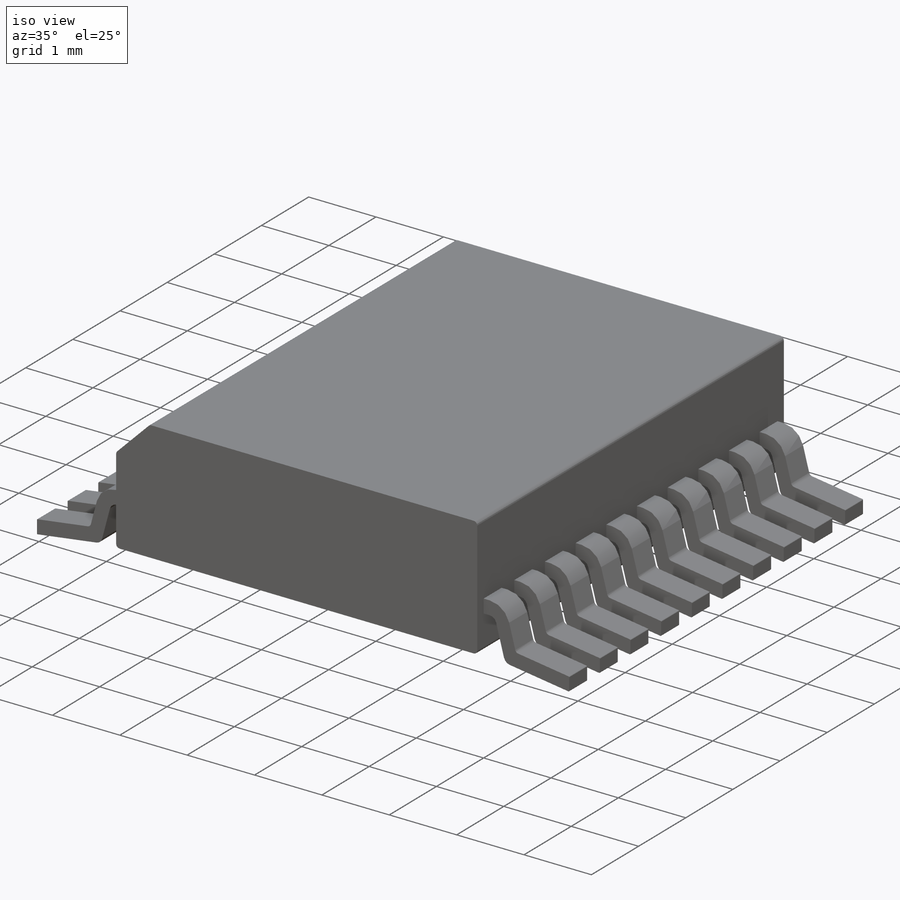
[diagram: iso view]
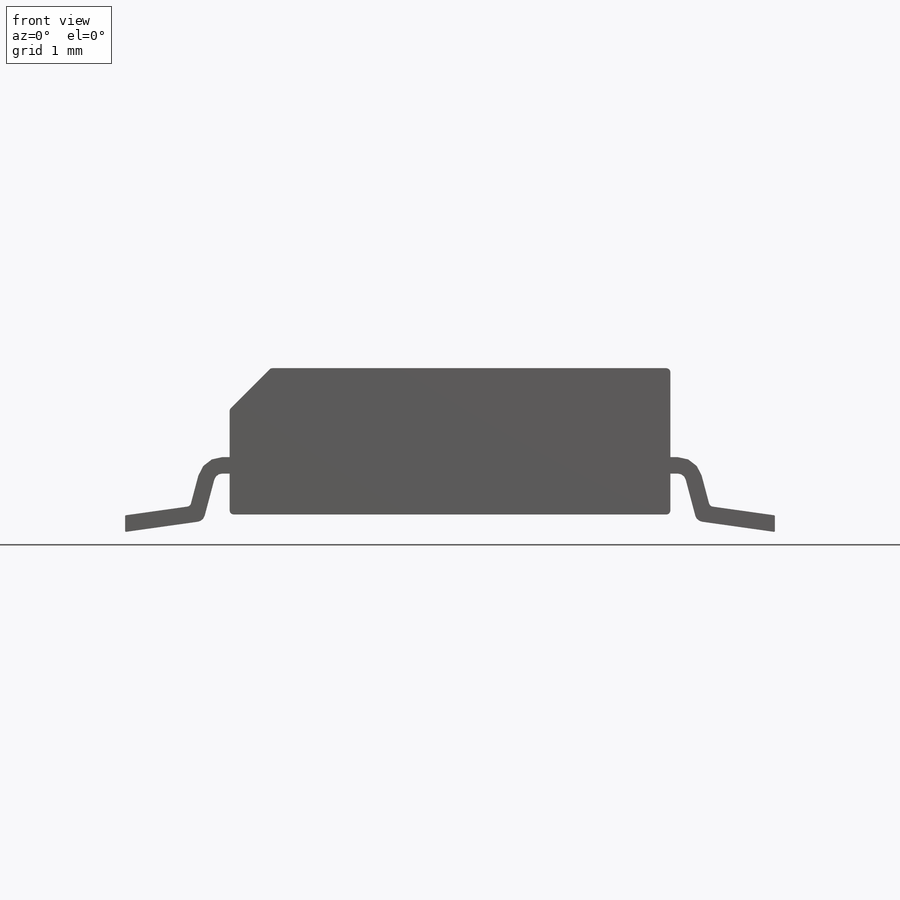
[diagram: front view]
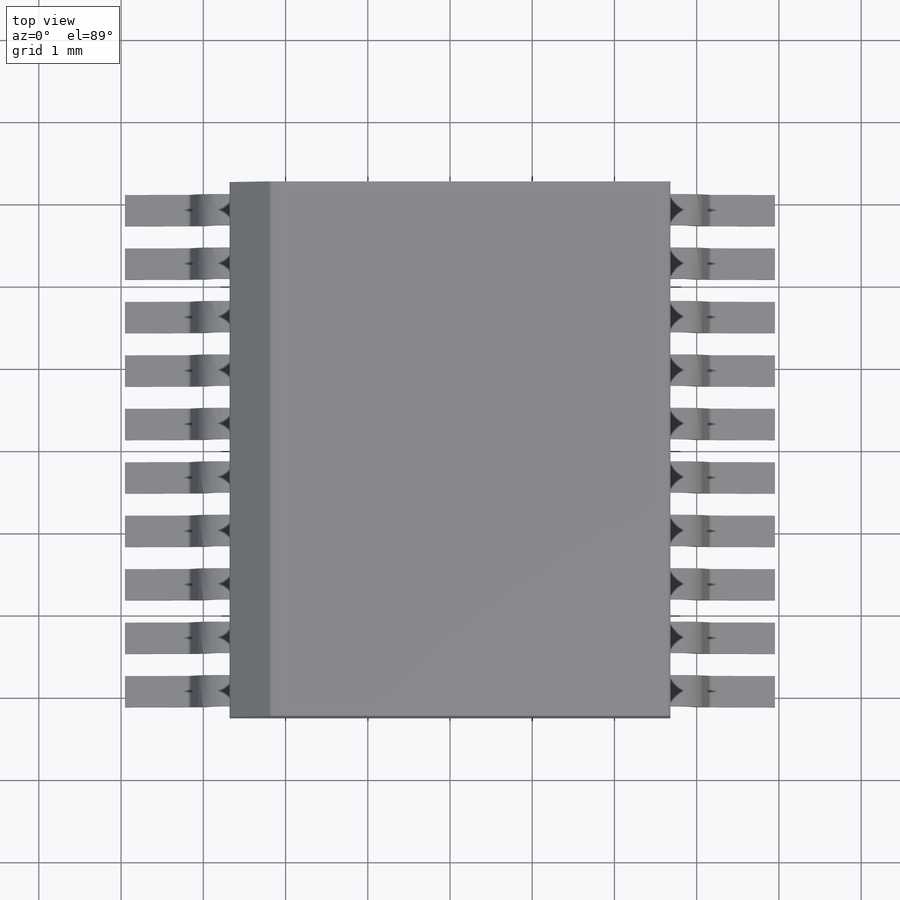
[diagram: top view]
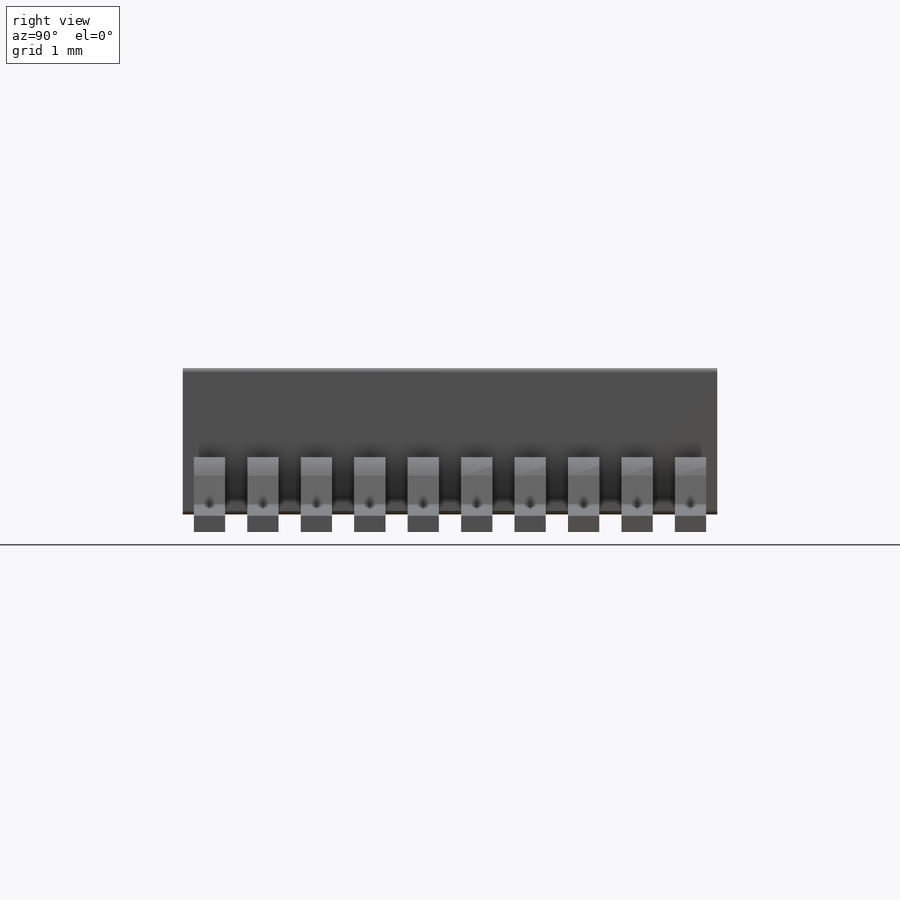
[diagram: right view]
SOLIDWORKS PART (.sldprt)
format: sldprt  version: not decoded by parser v0  size: 906,752 bytes
history: native  units: mm
features: sketch x3, extrude x2, material x1, plane x1, pattern_linear x1, mirror x1 + 1 further entry (+17 scaffold rows collapsed)
feature tree (27):
  scaffold x17  (default folders/planes/origin — collapsed)
  material  "Material <not specified>"
  "Axis2"
  sketch  "Sketch3"  dims[c1.D5=0.05mm c1.D1=1.78mm c1.D2=5.36mm c1.D3=0.5mm c1.D4=0.5mm c2.D2=2.18mm c2.D3=2.68mm c2.D4=5.36mm c3.D4=45.0deg]
  extrude  "Extrude3"  Depth=0.65mm
  sketch  "Sketch4"
  plane  "Plane2"
  sketch  "Sketch2"  dims[c1.D8=0.05mm c1.D9=0.01mm c1.D1=3.95mm c1.D2=0.21mm c1.D3=~6.677029mm c2.D3=8.0deg c2.D4=0.95mm c2.D5=0.5mm c2.D7=3.0mm c2.D2=0.21mm c3.D3=~3.021375mm c4.D3=8.0deg c4.D6=0.2mm]
  extrude  "Extrude2"  Depth=0.38mm
  pattern_linear  "LPattern7"  Count1=5 Count2=1 Spacing1=0.65mm Spacing2=0.65mm
  mirror  "Mirror1"
decode coverage: 5 of 7 modeling features carry decoded parameters; 1 rows unclassified (native names shown)
note: ~ marks probable driven/reference dimensions
note: suppression state not decoded; provenance and decode notes live in map.json
